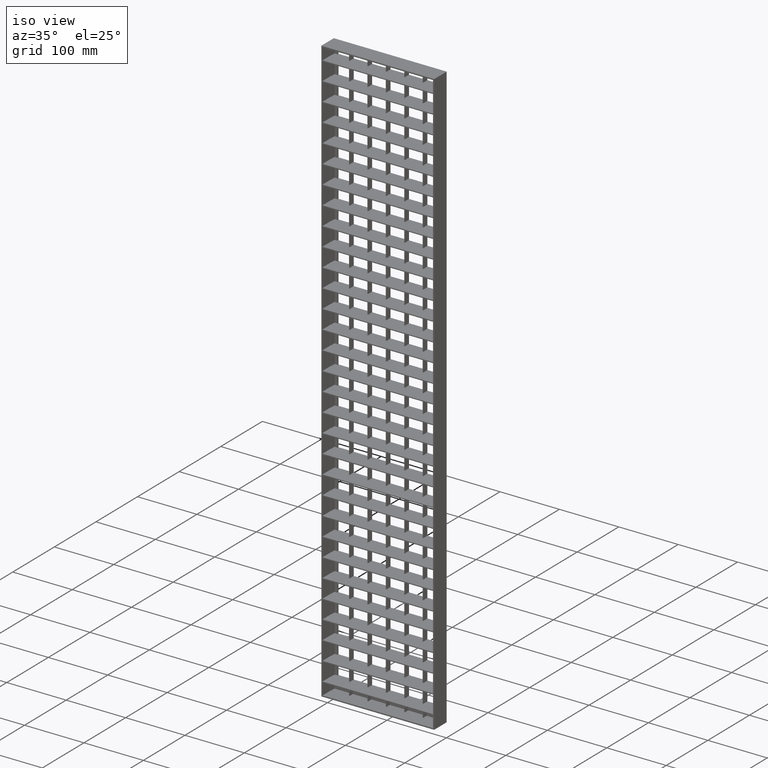
[diagram: clean part render]
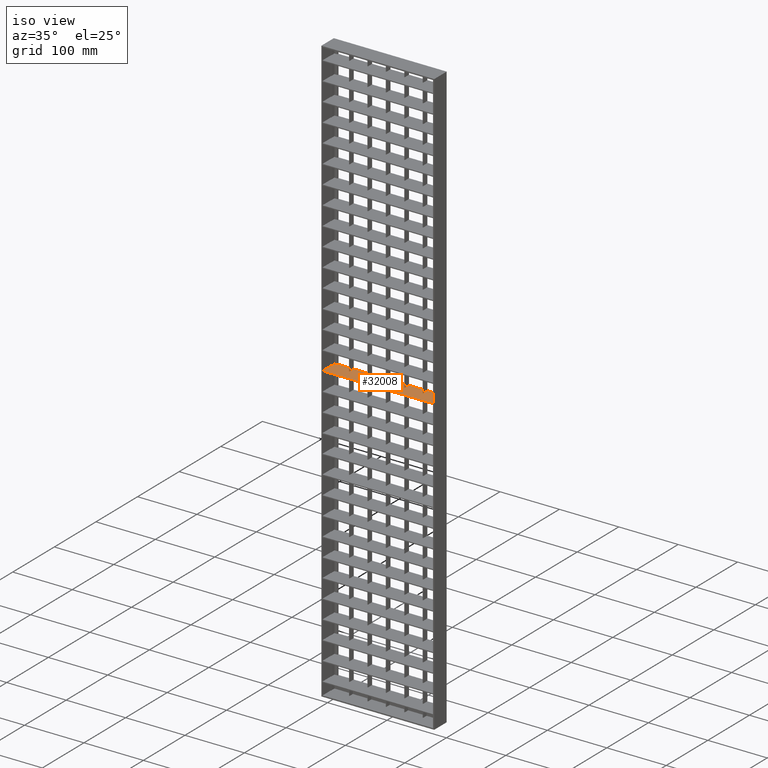
[diagram: same view with one face highlighted and labeled with its STEP entity id]
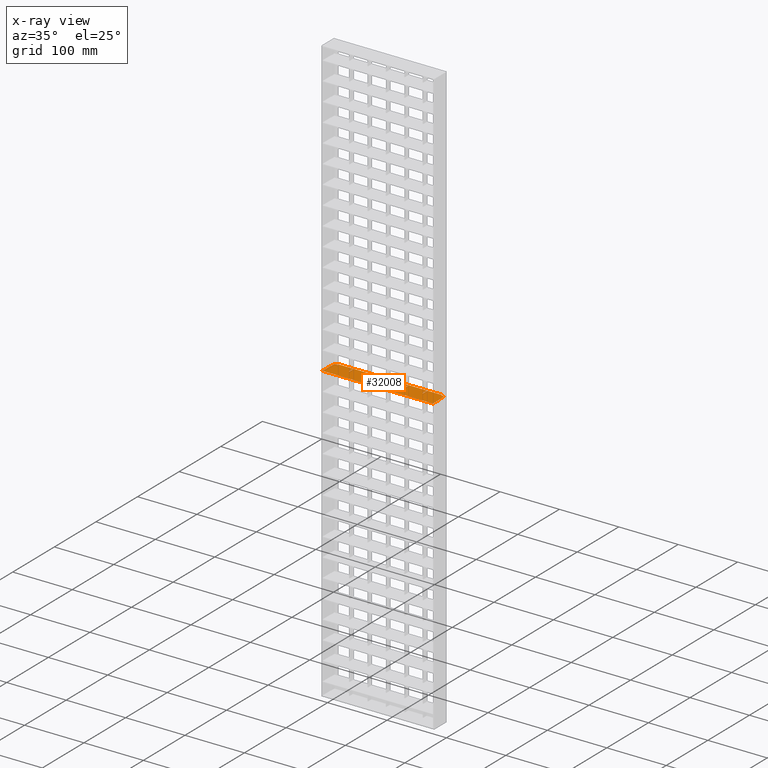
[diagram: x-ray of the same camera — body ghosted, the highlighted face saturated]
A machine part, iso view. The second image highlights one B-rep face of the part: STEP entity #32008.
The next image is the same camera in x-ray: the body ghosted, the highlighted face saturated — about 0% of this face is hidden behind the body in this view.
In plain terms, the highlighted planar face has unit normal (0, 0, 1).
Its self-contained STEP definition (entity closure, byte-faithful):
#147 = EDGE_CURVE ( 'NONE', #17148, #27571, #13720, .T. ) ;
#191 = CARTESIAN_POINT ( 'NONE',  ( 7.999999999999996400, 13.00000000000000400, -494.2500000000000600 ) ) ;
#192 = VECTOR ( 'NONE', #498, 1000.000000000000000 ) ;
#237 = DIRECTION ( 'NONE',  ( -1.000000000000000000, 0.0000000000000000000, 0.0000000000000000000 ) ) ;
#288 = ORIENTED_EDGE ( 'NONE', *, *, #591, .T. ) ;
#347 = EDGE_CURVE ( 'NONE', #31590, #1625, #26443, .T. ) ;
#392 = VERTEX_POINT ( 'NONE', #7376 ) ;
#498 = DIRECTION ( 'NONE',  ( -1.000000000000000000, 0.0000000000000000000, 0.0000000000000000000 ) ) ;
#503 = VERTEX_POINT ( 'NONE', #23310 ) ;
#578 = ORIENTED_EDGE ( 'NONE', *, *, #2909, .T. ) ;
#591 = EDGE_CURVE ( 'NONE', #1625, #8415, #30885, .T. ) ;
#619 = CARTESIAN_POINT ( 'NONE',  ( 182.0000000000000300, 13.00000000000000400, -494.2500000000000000 ) ) ;
#818 = CARTESIAN_POINT ( 'NONE',  ( 64.49999999999997200, -14.99999999999994000, -494.2500000000000000 ) ) ;
#1035 = EDGE_CURVE ( 'NONE', #5831, #5461, #16539, .T. ) ;
#1055 = CARTESIAN_POINT ( 'NONE',  ( 33.49999999999997200, 15.00000000000000200, -494.2500000000000000 ) ) ;
#1085 = DIRECTION ( 'NONE',  ( 1.000000000000000000, 0.0000000000000000000, -0.0000000000000000000 ) ) ;
#1222 = LINE ( 'NONE', #818, #28240 ) ;
#1251 = LINE ( 'NONE', #13599, #27837 ) ;
#1387 = LINE ( 'NONE', #11514, #21423 ) ;
#1461 = CARTESIAN_POINT ( 'NONE',  ( 126.5000000000000600, 5.000000000000002700, -494.2500000000002800 ) ) ;
#1463 = VECTOR ( 'NONE', #33959, 1000.000000000000000 ) ;
#1465 = VECTOR ( 'NONE', #17412, 1000.000000000000000 ) ;
#1472 = VERTEX_POINT ( 'NONE', #31091 ) ;
#1574 = CARTESIAN_POINT ( 'NONE',  ( 188.0000000000000300, -15.00000000000000000, -494.2500000000000000 ) ) ;
#1583 = DIRECTION ( 'NONE',  ( -0.0000000000000000000, 1.000000000000000000, 0.0000000000000000000 ) ) ;
#1625 = VERTEX_POINT ( 'NONE', #191 ) ;
#1629 = ORIENTED_EDGE ( 'NONE', *, *, #30676, .F. ) ;
#1711 = CARTESIAN_POINT ( 'NONE',  ( 33.49999999999997200, -14.99999999999994000, -494.2500000000000000 ) ) ;
#1806 = VERTEX_POINT ( 'NONE', #22163 ) ;
#1945 = VECTOR ( 'NONE', #26636, 1000.000000000000000 ) ;
#2075 = ORIENTED_EDGE ( 'NONE', *, *, #147, .F. ) ;
#2446 = EDGE_CURVE ( 'NONE', #25457, #20985, #24214, .T. ) ;
#2590 = LINE ( 'NONE', #19173, #3792 ) ;
#2715 = CARTESIAN_POINT ( 'NONE',  ( 63.49999999999997200, 5.000000000000000900, -494.2500000000000000 ) ) ;
#2780 = ORIENTED_EDGE ( 'NONE', *, *, #7446, .T. ) ;
#2865 = VECTOR ( 'NONE', #13263, 1000.000000000000000 ) ;
#2909 = EDGE_CURVE ( 'NONE', #9148, #25457, #16801, .T. ) ;
#3169 = VECTOR ( 'NONE', #4379, 1000.000000000000000 ) ;
#3429 = VECTOR ( 'NONE', #10720, 1000.000000000000000 ) ;
#3475 = DIRECTION ( 'NONE',  ( 0.0000000000000000000, 0.0000000000000000000, 1.000000000000000000 ) ) ;
#3791 = EDGE_CURVE ( 'NONE', #7317, #7427, #1222, .T. ) ;
#3792 = VECTOR ( 'NONE', #32420, 1000.000000000000000 ) ;
#3951 = LINE ( 'NONE', #31311, #1945 ) ;
#3989 = CARTESIAN_POINT ( 'NONE',  ( 218.0374765917511900, 15.00000000000005900, -494.2500000000000000 ) ) ;
#4003 = CARTESIAN_POINT ( 'NONE',  ( 126.5000000000000600, -14.99999999999994000, -494.2500000000000000 ) ) ;
#4193 = VECTOR ( 'NONE', #24888, 1000.000000000000000 ) ;
#4247 = VERTEX_POINT ( 'NONE', #2715 ) ;
#4305 = AXIS2_PLACEMENT_3D ( 'NONE', #8725, #3475, #21801 ) ;
#4379 = DIRECTION ( 'NONE',  ( -0.0000000000000000000, 1.000000000000000000, 0.0000000000000000000 ) ) ;
#4530 = LINE ( 'NONE', #21523, #2865 ) ;
#4670 = VECTOR ( 'NONE', #9646, 1000.000000000000000 ) ;
#4741 = ORIENTED_EDGE ( 'NONE', *, *, #20744, .T. ) ;
#4744 = EDGE_CURVE ( 'NONE', #25127, #28602, #27665, .T. ) ;
#4758 = VECTOR ( 'NONE', #28778, 1000.000000000000000 ) ;
#4827 = ORIENTED_EDGE ( 'NONE', *, *, #18143, .F. ) ;
#4925 = VECTOR ( 'NONE', #30093, 1000.000000000000000 ) ;
#4947 = DIRECTION ( 'NONE',  ( -1.000000000000000000, -3.061616997868382600E-016, 0.0000000000000000000 ) ) ;
#5153 = DIRECTION ( 'NONE',  ( 0.0000000000000000000, -1.000000000000000000, 0.0000000000000000000 ) ) ;
#5461 = VERTEX_POINT ( 'NONE', #23796 ) ;
#5568 = ORIENTED_EDGE ( 'NONE', *, *, #16689, .T. ) ;
#5831 = VERTEX_POINT ( 'NONE', #1574 ) ;
#6065 = VERTEX_POINT ( 'NONE', #26845 ) ;
#6082 = VECTOR ( 'NONE', #6138, 1000.000000000000000 ) ;
#6122 = CARTESIAN_POINT ( 'NONE',  ( 181.9999999999999400, 15.00000000000004800, -494.2500000000000000 ) ) ;
#6138 = DIRECTION ( 'NONE',  ( -0.0000000000000000000, 1.000000000000000000, 0.0000000000000000000 ) ) ;
#6488 = CARTESIAN_POINT ( 'NONE',  ( 218.0374765917511900, 15.00000000000005900, -494.2500000000000000 ) ) ;
#6514 = CARTESIAN_POINT ( 'NONE',  ( 95.49999999999997200, 5.000000000000004400, -494.2500000000000000 ) ) ;
#6916 = CARTESIAN_POINT ( 'NONE',  ( 218.0374765917511900, 5.000000000000000900, -494.2500000000000000 ) ) ;
#6941 = ORIENTED_EDGE ( 'NONE', *, *, #15866, .F. ) ;
#7317 = VERTEX_POINT ( 'NONE', #28708 ) ;
#7350 = EDGE_CURVE ( 'NONE', #4247, #7317, #31541, .T. ) ;
#7354 = CARTESIAN_POINT ( 'NONE',  ( 94.99999999999994300, 13.00000000000000400, -494.2500000000000000 ) ) ;
#7376 = CARTESIAN_POINT ( 'NONE',  ( 32.49999999999997200, 15.00000000000000200, -494.2500000000002800 ) ) ;
#7427 = VERTEX_POINT ( 'NONE', #18072 ) ;
#7446 = EDGE_CURVE ( 'NONE', #7809, #27571, #9795, .T. ) ;
#7601 = CARTESIAN_POINT ( 'NONE',  ( 7.999999999999996400, 13.00000000000000400, -494.2500000000000600 ) ) ;
#7620 = VECTOR ( 'NONE', #8718, 1000.000000000000000 ) ;
#7789 = VERTEX_POINT ( 'NONE', #1461 ) ;
#7809 = VERTEX_POINT ( 'NONE', #22509 ) ;
#7837 = DIRECTION ( 'NONE',  ( -1.000000000000000000, -3.061616997868382600E-016, 0.0000000000000000000 ) ) ;
#8025 = LINE ( 'NONE', #7354, #4758 ) ;
#8091 = ORIENTED_EDGE ( 'NONE', *, *, #14269, .F. ) ;
#8225 = CARTESIAN_POINT ( 'NONE',  ( 94.49999999999997200, 15.00000000000000200, -494.2500000000002800 ) ) ;
#8415 = VERTEX_POINT ( 'NONE', #23110 ) ;
#8690 = DIRECTION ( 'NONE',  ( 0.0000000000000000000, -1.000000000000000000, 0.0000000000000000000 ) ) ;
#8718 = DIRECTION ( 'NONE',  ( 0.0000000000000000000, -1.000000000000000000, 0.0000000000000000000 ) ) ;
#8725 = CARTESIAN_POINT ( 'NONE',  ( 218.0374765917511900, -14.99999999999994000, -494.2500000000000000 ) ) ;
#8814 = EDGE_CURVE ( 'NONE', #28602, #6065, #22064, .T. ) ;
#9148 = VERTEX_POINT ( 'NONE', #619 ) ;
#9275 = LINE ( 'NONE', #11233, #7620 ) ;
#9430 = CARTESIAN_POINT ( 'NONE',  ( 187.5000000000000600, -14.99999999999994000, -494.2500000000000000 ) ) ;
#9646 = DIRECTION ( 'NONE',  ( 1.000000000000000000, 0.0000000000000000000, -0.0000000000000000000 ) ) ;
#9795 = LINE ( 'NONE', #18180, #11477 ) ;
#9802 = VECTOR ( 'NONE', #16077, 1000.000000000000000 ) ;
#9818 = DIRECTION ( 'NONE',  ( -1.000000000000000000, 0.0000000000000000000, 0.0000000000000000000 ) ) ;
#10061 = VERTEX_POINT ( 'NONE', #26369 ) ;
#10345 = ORIENTED_EDGE ( 'NONE', *, *, #7350, .F. ) ;
#10403 = EDGE_CURVE ( 'NONE', #19851, #7789, #17408, .T. ) ;
#10720 = DIRECTION ( 'NONE',  ( -1.000000000000000000, -3.061616997868382600E-016, 0.0000000000000000000 ) ) ;
#10779 = VECTOR ( 'NONE', #4947, 1000.000000000000000 ) ;
#11143 = LINE ( 'NONE', #24552, #4193 ) ;
#11185 = EDGE_CURVE ( 'NONE', #30073, #25277, #2590, .T. ) ;
#11214 = ORIENTED_EDGE ( 'NONE', *, *, #22346, .T. ) ;
#11233 = CARTESIAN_POINT ( 'NONE',  ( 32.49999999999997200, -14.99999999999994000, -494.2500000000000000 ) ) ;
#11463 = EDGE_CURVE ( 'NONE', #7789, #30073, #33284, .T. ) ;
#11477 = VECTOR ( 'NONE', #7837, 1000.000000000000000 ) ;
#11514 = CARTESIAN_POINT ( 'NONE',  ( 63.49999999999997200, -14.99999999999994000, -494.2500000000000000 ) ) ;
#11688 = VECTOR ( 'NONE', #17178, 1000.000000000000000 ) ;
#12313 = VECTOR ( 'NONE', #32639, 1000.000000000000000 ) ;
#12365 = CARTESIAN_POINT ( 'NONE',  ( 218.0374765917511900, 5.000000000000000900, -494.2500000000000000 ) ) ;
#12650 = ORIENTED_EDGE ( 'NONE', *, *, #2446, .T. ) ;
#13109 = CARTESIAN_POINT ( 'NONE',  ( 157.5000000000000300, 15.00000000000000200, -494.2500000000002800 ) ) ;
#13263 = DIRECTION ( 'NONE',  ( 0.0000000000000000000, -1.000000000000000000, 0.0000000000000000000 ) ) ;
#13481 = CARTESIAN_POINT ( 'NONE',  ( 95.49999999999997200, 15.00000000000002000, -494.2500000000000000 ) ) ;
#13599 = CARTESIAN_POINT ( 'NONE',  ( 94.49999999999997200, -14.99999999999994000, -494.2500000000000000 ) ) ;
#13720 = LINE ( 'NONE', #1711, #30955 ) ;
#14004 = LINE ( 'NONE', #15037, #32874 ) ;
#14269 = EDGE_CURVE ( 'NONE', #392, #10061, #9275, .T. ) ;
#14522 = VECTOR ( 'NONE', #1085, 1000.000000000000000 ) ;
#14548 = CARTESIAN_POINT ( 'NONE',  ( 218.0374765917511900, 15.00000000000005900, -494.2500000000000000 ) ) ;
#14738 = CARTESIAN_POINT ( 'NONE',  ( 188.0000000000000300, 5.000000000000004400, -494.2500000000000000 ) ) ;
#15037 = CARTESIAN_POINT ( 'NONE',  ( 218.0374765917511900, 15.00000000000005900, -494.2500000000000000 ) ) ;
#15161 = EDGE_CURVE ( 'NONE', #6065, #9148, #8025, .T. ) ;
#15268 = DIRECTION ( 'NONE',  ( -1.000000000000000000, -3.061616997868382600E-016, 0.0000000000000000000 ) ) ;
#15494 = LINE ( 'NONE', #32596, #6082 ) ;
#15704 = CARTESIAN_POINT ( 'NONE',  ( 2.000000000000004900, 13.00000000000000400, -494.2500000000000600 ) ) ;
#15772 = ORIENTED_EDGE ( 'NONE', *, *, #20498, .F. ) ;
#15825 = LINE ( 'NONE', #3989, #11688 ) ;
#15866 = EDGE_CURVE ( 'NONE', #503, #26578, #21161, .T. ) ;
#16077 = DIRECTION ( 'NONE',  ( 8.673617379884037400E-016, 1.000000000000000000, -0.0000000000000000000 ) ) ;
#16158 = ORIENTED_EDGE ( 'NONE', *, *, #4744, .T. ) ;
#16232 = EDGE_CURVE ( 'NONE', #10061, #17148, #17852, .T. ) ;
#16246 = ORIENTED_EDGE ( 'NONE', *, *, #11463, .T. ) ;
#16365 = CARTESIAN_POINT ( 'NONE',  ( 2.499999999999974200, 5.000000000000004400, -494.2500000000000000 ) ) ;
#16539 = LINE ( 'NONE', #19025, #3429 ) ;
#16689 = EDGE_CURVE ( 'NONE', #29312, #23645, #33776, .T. ) ;
#16801 = LINE ( 'NONE', #31766, #9802 ) ;
#16852 = ORIENTED_EDGE ( 'NONE', *, *, #8814, .T. ) ;
#16952 = ORIENTED_EDGE ( 'NONE', *, *, #33225, .F. ) ;
#17148 = VERTEX_POINT ( 'NONE', #33519 ) ;
#17178 = DIRECTION ( 'NONE',  ( -1.000000000000000000, -3.061616997868382600E-016, 0.0000000000000000000 ) ) ;
#17408 = LINE ( 'NONE', #4003, #1465 ) ;
#17412 = DIRECTION ( 'NONE',  ( 0.0000000000000000000, -1.000000000000000000, 0.0000000000000000000 ) ) ;
#17786 = LINE ( 'NONE', #14548, #10779 ) ;
#17852 = LINE ( 'NONE', #32659, #14522 ) ;
#18072 = CARTESIAN_POINT ( 'NONE',  ( 64.49999999999997200, 15.00000000000001200, -494.2500000000000000 ) ) ;
#18143 = EDGE_CURVE ( 'NONE', #7809, #4247, #1387, .T. ) ;
#18180 = CARTESIAN_POINT ( 'NONE',  ( 218.0374765917511900, 15.00000000000005900, -494.2500000000000000 ) ) ;
#18212 = CARTESIAN_POINT ( 'NONE',  ( 218.0374765917511900, 5.000000000000000900, -494.2500000000000000 ) ) ;
#18315 = EDGE_CURVE ( 'NONE', #1806, #19851, #14004, .T. ) ;
#18335 = ORIENTED_EDGE ( 'NONE', *, *, #30387, .T. ) ;
#18455 = VECTOR ( 'NONE', #5153, 1000.000000000000000 ) ;
#18798 = ORIENTED_EDGE ( 'NONE', *, *, #11185, .T. ) ;
#18914 = DIRECTION ( 'NONE',  ( -0.0000000000000000000, 1.000000000000000000, 0.0000000000000000000 ) ) ;
#18973 = VECTOR ( 'NONE', #9818, 1000.000000000000000 ) ;
#19025 = CARTESIAN_POINT ( 'NONE',  ( 218.0374765917511900, -14.99999999999994000, -494.2500000000000000 ) ) ;
#19173 = CARTESIAN_POINT ( 'NONE',  ( 125.5000000000000600, -14.99999999999994000, -494.2500000000000000 ) ) ;
#19196 = PLANE ( 'NONE',  #4305 ) ;
#19476 = VECTOR ( 'NONE', #237, 1000.000000000000000 ) ;
#19479 = ORIENTED_EDGE ( 'NONE', *, *, #28482, .F. ) ;
#19851 = VERTEX_POINT ( 'NONE', #20616 ) ;
#20077 = EDGE_CURVE ( 'NONE', #32675, #27559, #15494, .T. ) ;
#20136 = VECTOR ( 'NONE', #33632, 1000.000000000000000 ) ;
#20498 = EDGE_CURVE ( 'NONE', #25127, #5831, #4530, .T. ) ;
#20501 = ORIENTED_EDGE ( 'NONE', *, *, #10403, .T. ) ;
#20616 = CARTESIAN_POINT ( 'NONE',  ( 126.5000000000000600, 15.00000000000000200, -494.2500000000002800 ) ) ;
#20744 = EDGE_CURVE ( 'NONE', #29270, #7427, #15825, .T. ) ;
#20806 = LINE ( 'NONE', #27973, #3169 ) ;
#20961 = CARTESIAN_POINT ( 'NONE',  ( 218.0374765917511900, 5.000000000000000900, -494.2500000000000000 ) ) ;
#20985 = VERTEX_POINT ( 'NONE', #13109 ) ;
#21149 = ORIENTED_EDGE ( 'NONE', *, *, #21941, .T. ) ;
#21161 = LINE ( 'NONE', #12365, #33068 ) ;
#21423 = VECTOR ( 'NONE', #30216, 1000.000000000000000 ) ;
#21523 = CARTESIAN_POINT ( 'NONE',  ( 188.0000000000000300, -14.99999999999994000, -494.2500000000000000 ) ) ;
#21654 = ORIENTED_EDGE ( 'NONE', *, *, #16232, .F. ) ;
#21801 = DIRECTION ( 'NONE',  ( 1.000000000000000000, 0.0000000000000000000, -0.0000000000000000000 ) ) ;
#21941 = EDGE_CURVE ( 'NONE', #392, #31590, #17786, .T. ) ;
#22064 = LINE ( 'NONE', #9430, #29016 ) ;
#22163 = CARTESIAN_POINT ( 'NONE',  ( 156.5000000000000300, 15.00000000000003900, -494.2500000000000000 ) ) ;
#22346 = EDGE_CURVE ( 'NONE', #23645, #1806, #11143, .T. ) ;
#22489 = CARTESIAN_POINT ( 'NONE',  ( 125.5000000000000600, 5.000000000000002700, -494.2500000000002800 ) ) ;
#22509 = CARTESIAN_POINT ( 'NONE',  ( 63.49999999999997200, 15.00000000000000200, -494.2500000000002800 ) ) ;
#22871 = ORIENTED_EDGE ( 'NONE', *, *, #18315, .T. ) ;
#23045 = ORIENTED_EDGE ( 'NONE', *, *, #3791, .F. ) ;
#23110 = CARTESIAN_POINT ( 'NONE',  ( 2.499999999999974200, 13.00000000000000400, -494.2500000000000600 ) ) ;
#23310 = CARTESIAN_POINT ( 'NONE',  ( 2.000000000000004900, 5.000000000000000900, -494.2500000000000600 ) ) ;
#23645 = VERTEX_POINT ( 'NONE', #30464 ) ;
#23796 = CARTESIAN_POINT ( 'NONE',  ( 2.000000000000001800, -15.00000000000000700, -494.2500000000000000 ) ) ;
#24082 = CARTESIAN_POINT ( 'NONE',  ( 157.5000000000000300, 5.000000000000002700, -494.2500000000002800 ) ) ;
#24214 = LINE ( 'NONE', #6488, #4925 ) ;
#24216 = LINE ( 'NONE', #31263, #18455 ) ;
#24552 = CARTESIAN_POINT ( 'NONE',  ( 156.5000000000000300, -14.99999999999994000, -494.2500000000000000 ) ) ;
#24888 = DIRECTION ( 'NONE',  ( -0.0000000000000000000, 1.000000000000000000, 0.0000000000000000000 ) ) ;
#24963 = DIRECTION ( 'NONE',  ( -0.0000000000000000000, 1.000000000000000000, 0.0000000000000000000 ) ) ;
#25127 = VERTEX_POINT ( 'NONE', #14738 ) ;
#25277 = VERTEX_POINT ( 'NONE', #28059 ) ;
#25457 = VERTEX_POINT ( 'NONE', #6122 ) ;
#25569 = ORIENTED_EDGE ( 'NONE', *, *, #20077, .F. ) ;
#25823 = DIRECTION ( 'NONE',  ( 1.000000000000000000, 0.0000000000000000000, -0.0000000000000000000 ) ) ;
#26369 = CARTESIAN_POINT ( 'NONE',  ( 32.49999999999997200, 5.000000000000000900, -494.2500000000000000 ) ) ;
#26404 = LINE ( 'NONE', #6916, #4670 ) ;
#26443 = LINE ( 'NONE', #7601, #1463 ) ;
#26574 = FACE_OUTER_BOUND ( 'NONE', #31742, .T. ) ;
#26578 = VERTEX_POINT ( 'NONE', #16365 ) ;
#26636 = DIRECTION ( 'NONE',  ( -0.0000000000000000000, -1.000000000000000000, 0.0000000000000000000 ) ) ;
#26845 = CARTESIAN_POINT ( 'NONE',  ( 187.5000000000000300, 13.00000000000000400, -494.2500000000000000 ) ) ;
#27460 = ORIENTED_EDGE ( 'NONE', *, *, #32915, .T. ) ;
#27559 = VERTEX_POINT ( 'NONE', #13481 ) ;
#27571 = VERTEX_POINT ( 'NONE', #1055 ) ;
#27665 = LINE ( 'NONE', #20961, #33803 ) ;
#27837 = VECTOR ( 'NONE', #8690, 1000.000000000000000 ) ;
#27973 = CARTESIAN_POINT ( 'NONE',  ( 2.499999999999974200, -14.99999999999994000, -494.2500000000000000 ) ) ;
#28059 = CARTESIAN_POINT ( 'NONE',  ( 125.5000000000000600, 15.00000000000003000, -494.2500000000000000 ) ) ;
#28240 = VECTOR ( 'NONE', #18914, 1000.000000000000000 ) ;
#28372 = CARTESIAN_POINT ( 'NONE',  ( 218.0374765917511900, 5.000000000000000900, -494.2500000000000000 ) ) ;
#28482 = EDGE_CURVE ( 'NONE', #1472, #32675, #26404, .T. ) ;
#28602 = VERTEX_POINT ( 'NONE', #33602 ) ;
#28632 = DIRECTION ( 'NONE',  ( -1.000000000000000000, 0.0000000000000000000, 0.0000000000000000000 ) ) ;
#28708 = CARTESIAN_POINT ( 'NONE',  ( 64.49999999999997200, 5.000000000000004400, -494.2500000000000000 ) ) ;
#28778 = DIRECTION ( 'NONE',  ( -1.000000000000000000, 0.0000000000000000000, 0.0000000000000000000 ) ) ;
#29016 = VECTOR ( 'NONE', #1583, 1000.000000000000000 ) ;
#29155 = LINE ( 'NONE', #30007, #12313 ) ;
#29270 = VERTEX_POINT ( 'NONE', #8225 ) ;
#29312 = VERTEX_POINT ( 'NONE', #24082 ) ;
#29579 = EDGE_CURVE ( 'NONE', #25277, #27559, #29155, .T. ) ;
#29789 = ORIENTED_EDGE ( 'NONE', *, *, #1035, .F. ) ;
#30007 = CARTESIAN_POINT ( 'NONE',  ( 218.0374765917511900, 15.00000000000005900, -494.2500000000000000 ) ) ;
#30073 = VERTEX_POINT ( 'NONE', #22489 ) ;
#30093 = DIRECTION ( 'NONE',  ( -1.000000000000000000, -3.061616997868382600E-016, 0.0000000000000000000 ) ) ;
#30216 = DIRECTION ( 'NONE',  ( 0.0000000000000000000, -1.000000000000000000, 0.0000000000000000000 ) ) ;
#30387 = EDGE_CURVE ( 'NONE', #20985, #29312, #24216, .T. ) ;
#30464 = CARTESIAN_POINT ( 'NONE',  ( 156.5000000000000300, 5.000000000000002700, -494.2500000000002800 ) ) ;
#30676 = EDGE_CURVE ( 'NONE', #29270, #1472, #1251, .T. ) ;
#30885 = LINE ( 'NONE', #15704, #192 ) ;
#30955 = VECTOR ( 'NONE', #24963, 1000.000000000000000 ) ;
#31091 = CARTESIAN_POINT ( 'NONE',  ( 94.49999999999997200, 5.000000000000000900, -494.2500000000000000 ) ) ;
#31263 = CARTESIAN_POINT ( 'NONE',  ( 157.5000000000000300, -14.99999999999994000, -494.2500000000000000 ) ) ;
#31272 = ORIENTED_EDGE ( 'NONE', *, *, #29579, .T. ) ;
#31311 = CARTESIAN_POINT ( 'NONE',  ( 2.000000000000004900, -15.00000000000000000, -494.2500000000000600 ) ) ;
#31475 = ORIENTED_EDGE ( 'NONE', *, *, #347, .T. ) ;
#31541 = LINE ( 'NONE', #28372, #20136 ) ;
#31590 = VERTEX_POINT ( 'NONE', #33501 ) ;
#31742 = EDGE_LOOP ( 'NONE', ( #15772, #16158, #16852, #32193, #578, #12650, #18335, #5568, #11214, #22871, #20501, #16246, #18798, #31272, #25569, #19479, #1629, #4741, #23045, #10345, #4827, #2780, #2075, #21654, #8091, #21149, #31475, #288, #16952, #6941, #27460, #29789 ) ) ;
#31766 = CARTESIAN_POINT ( 'NONE',  ( 182.0000000000000300, 12.99999999999991300, -494.2500000000000000 ) ) ;
#32008 = ADVANCED_FACE ( 'NONE', ( #26574 ), #19196, .T. ) ;
#32193 = ORIENTED_EDGE ( 'NONE', *, *, #15161, .T. ) ;
#32420 = DIRECTION ( 'NONE',  ( -0.0000000000000000000, 1.000000000000000000, 0.0000000000000000000 ) ) ;
#32596 = CARTESIAN_POINT ( 'NONE',  ( 95.49999999999997200, -14.99999999999994000, -494.2500000000000000 ) ) ;
#32639 = DIRECTION ( 'NONE',  ( -1.000000000000000000, -3.061616997868382600E-016, 0.0000000000000000000 ) ) ;
#32659 = CARTESIAN_POINT ( 'NONE',  ( 218.0374765917511900, 5.000000000000000900, -494.2500000000000000 ) ) ;
#32675 = VERTEX_POINT ( 'NONE', #6514 ) ;
#32874 = VECTOR ( 'NONE', #15268, 1000.000000000000000 ) ;
#32915 = EDGE_CURVE ( 'NONE', #503, #5461, #3951, .T. ) ;
#33068 = VECTOR ( 'NONE', #25823, 1000.000000000000000 ) ;
#33225 = EDGE_CURVE ( 'NONE', #26578, #8415, #20806, .T. ) ;
#33284 = LINE ( 'NONE', #33662, #18973 ) ;
#33501 = CARTESIAN_POINT ( 'NONE',  ( 7.999999999999994700, 15.00000000000000400, -494.2500000000000600 ) ) ;
#33519 = CARTESIAN_POINT ( 'NONE',  ( 33.49999999999997200, 5.000000000000004400, -494.2500000000000000 ) ) ;
#33602 = CARTESIAN_POINT ( 'NONE',  ( 187.5000000000000600, 5.000000000000002700, -494.2500000000002800 ) ) ;
#33632 = DIRECTION ( 'NONE',  ( 1.000000000000000000, 0.0000000000000000000, -0.0000000000000000000 ) ) ;
#33662 = CARTESIAN_POINT ( 'NONE',  ( 218.0374765917511900, 5.000000000000000900, -494.2500000000000000 ) ) ;
#33776 = LINE ( 'NONE', #18212, #19476 ) ;
#33803 = VECTOR ( 'NONE', #28632, 1000.000000000000000 ) ;
#33959 = DIRECTION ( 'NONE',  ( 8.673617379884036500E-016, -1.000000000000000000, 0.0000000000000000000 ) ) ;